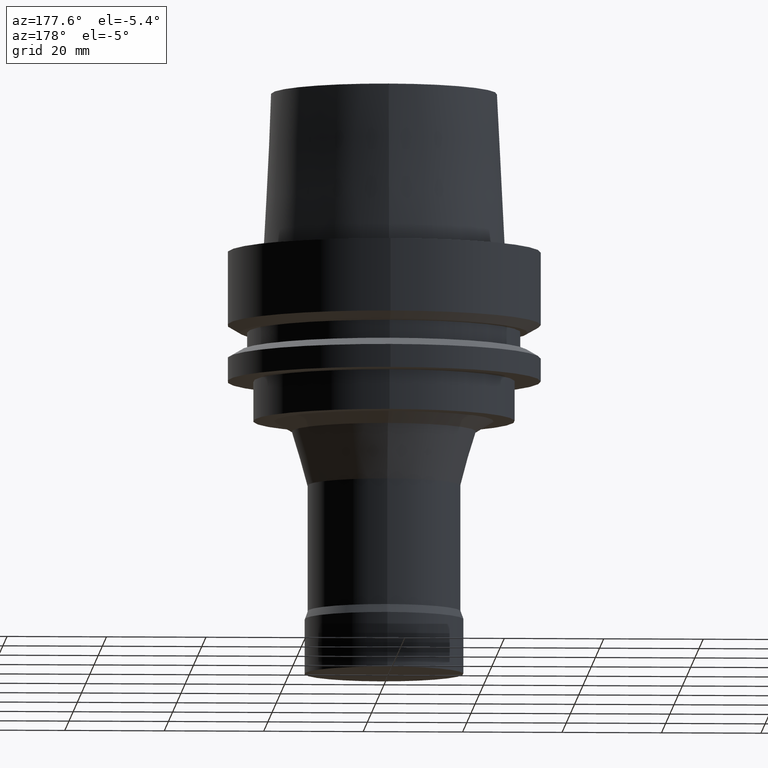
[diagram: clean part render]
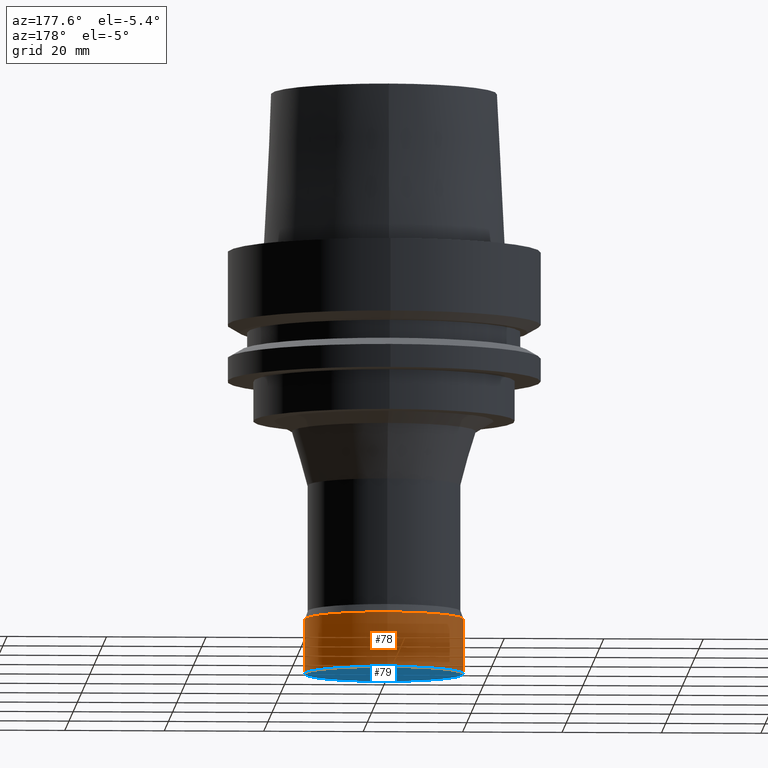
[diagram: same view with the hole feature highlighted: cylindrical wall and planar end face, labeled with their STEP entity ids]
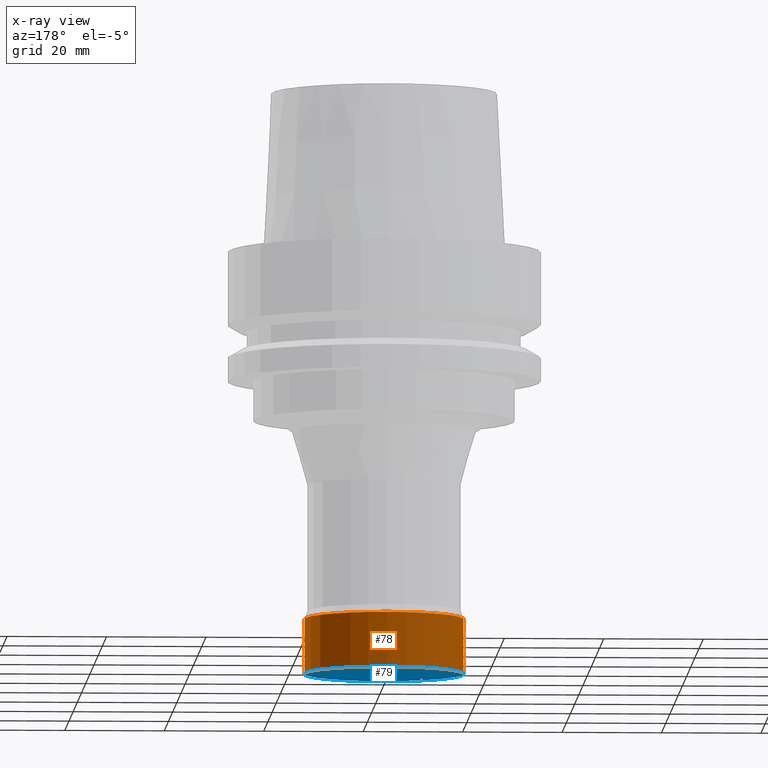
[diagram: x-ray of the same camera — body ghosted, the hole faces saturated]
A machine part, auxiliary view. The highlighted faces form one hole feature of diameter 32 mm: the cylindrical wall (entity #78, orange) and its adjacent planar end face (entity #79, blue) — they share a circular edge in the B-rep.
The next image is the same camera in x-ray (body ghosted, the hole faces saturated) — the bore reads through the body.
Wall:
#78=ADVANCED_FACE('',(#104,#105),#106,.T.);
#104=FACE_BOUND('',#159,.T.);
#105=FACE_BOUND('',#160,.T.);
#106=CYLINDRICAL_SURFACE('',#161,16.0);
#159=EDGE_LOOP('',(#220));
#160=EDGE_LOOP('',(#221));
#161=AXIS2_PLACEMENT_3D('',#222,#223,#224);
#220=ORIENTED_EDGE('',*,*,#302,.F.);
#221=ORIENTED_EDGE('',*,*,#301,.T.);
#222=CARTESIAN_POINT('',(4.86797102661073E-015,9.73594205322146E-015,-79.5));
#223=DIRECTION('',(-6.12323399573677E-017,-1.22464679914735E-016,1.0));
#224=DIRECTION('',(-1.23259516440783E-032,1.0,1.22464679914735E-016));
#301=EDGE_CURVE('',#322,#322,#323,.T.);
#302=EDGE_CURVE('',#324,#324,#325,.T.);
#322=VERTEX_POINT('',#358);
#323=CIRCLE('',#359,16.0);
#324=VERTEX_POINT('',#360);
#325=CIRCLE('',#361,16.0);
#358=CARTESIAN_POINT('',(4.53119315684521E-015,16.0,-74.0));
#359=AXIS2_PLACEMENT_3D('',#397,#398,#399);
#360=CARTESIAN_POINT('',(5.20474889637625E-015,16.0,-85.0));
#361=AXIS2_PLACEMENT_3D('',#400,#401,#402);
#397=CARTESIAN_POINT('',(4.53119315684521E-015,9.06238631369041E-015,-74.0));
#398=DIRECTION('',(6.12323399573677E-017,1.22464679914735E-016,-1.0));
#399=DIRECTION('',(-1.23259516440783E-032,1.0,1.22464679914735E-016));
#400=CARTESIAN_POINT('',(5.20474889637625E-015,1.04094977927525E-014,-85.0));
#401=DIRECTION('',(6.12323399573677E-017,1.22464679914735E-016,-1.0));
#402=DIRECTION('',(-1.23259516440783E-032,1.0,1.22464679914735E-016));
End face:
#79=ADVANCED_FACE('',(#107),#108,.T.);
#107=FACE_OUTER_BOUND('',#162,.T.);
#108=PLANE('',#163);
#162=EDGE_LOOP('',(#225));
#163=AXIS2_PLACEMENT_3D('',#226,#227,#228);
#225=ORIENTED_EDGE('',*,*,#302,.T.);
#226=CARTESIAN_POINT('',(5.20474889637625E-015,8.00000000000001,-85.0));
#227=DIRECTION('',(6.12323399573677E-017,1.22464679914735E-016,-1.0));
#228=DIRECTION('',(-1.23259516440783E-032,1.0,1.22464679914735E-016));
#302=EDGE_CURVE('',#324,#324,#325,.T.);
#324=VERTEX_POINT('',#360);
#325=CIRCLE('',#361,16.0);
#360=CARTESIAN_POINT('',(5.20474889637625E-015,16.0,-85.0));
#361=AXIS2_PLACEMENT_3D('',#400,#401,#402);
#400=CARTESIAN_POINT('',(5.20474889637625E-015,1.04094977927525E-014,-85.0));
#401=DIRECTION('',(6.12323399573677E-017,1.22464679914735E-016,-1.0));
#402=DIRECTION('',(-1.23259516440783E-032,1.0,1.22464679914735E-016));